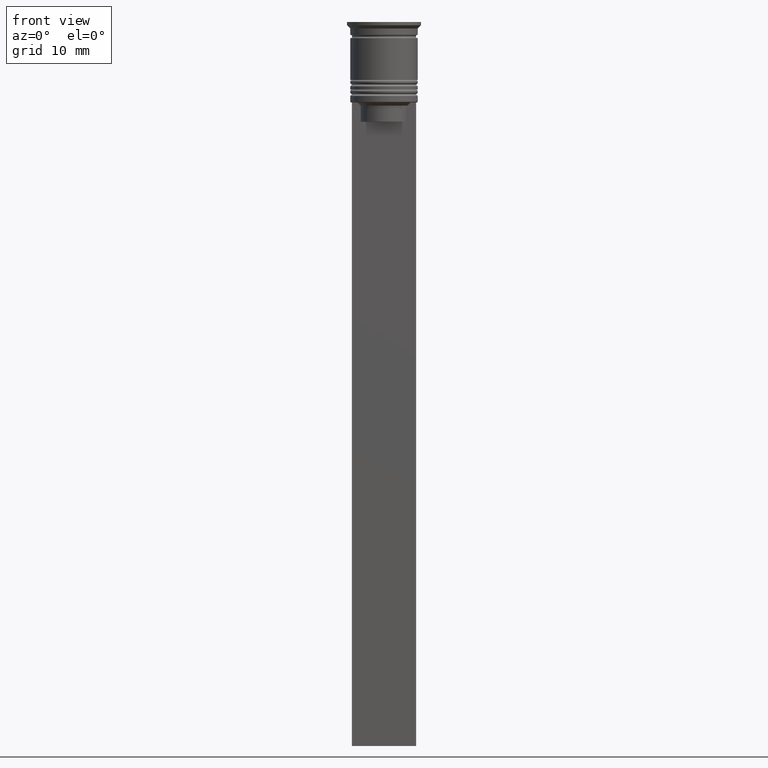
[diagram: clean part render]
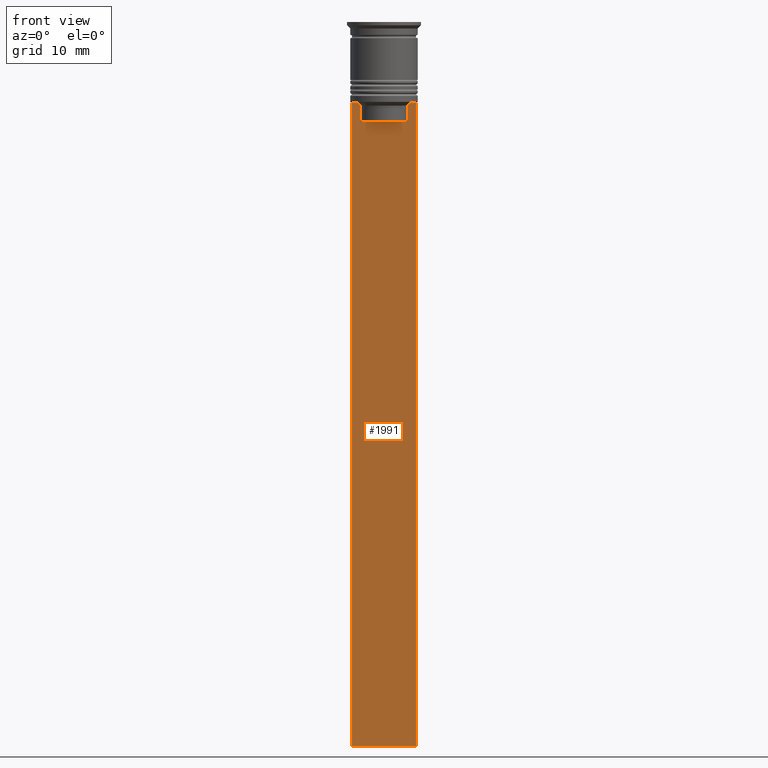
[diagram: same view with one face highlighted and labeled with its STEP entity id]
A machine part, front view. The second image highlights one B-rep face of the part: STEP entity #1991.
In plain terms, the highlighted planar face has unit normal (0, -1, -0).
Its self-contained STEP definition (entity closure, byte-faithful):
#10 = LINE ( 'NONE', #1261, #487 ) ;
#13 = ORIENTED_EDGE ( 'NONE', *, *, #1075, .F. ) ;
#34 = LINE ( 'NONE', #748, #1238 ) ;
#71 = CARTESIAN_POINT ( 'NONE',  ( 5.000000000000000000, -0.5000000000000008882, -112.5000000000000000 ) ) ;
#77 = EDGE_CURVE ( 'NONE', #2206, #1515, #1177, .T. ) ;
#98 = CARTESIAN_POINT ( 'NONE',  ( -4.119769411022908834, -0.5000000000000008882, -12.50000000000000000 ) ) ;
#111 = CARTESIAN_POINT ( 'NONE',  ( 5.000000000000000000, -0.5000000000000008882, -2.450124378879110054 ) ) ;
#159 = CARTESIAN_POINT ( 'NONE',  ( 5.000000000000000000, -0.5000000000000008882, -112.5000000000000000 ) ) ;
#188 = ORIENTED_EDGE ( 'NONE', *, *, #1441, .T. ) ;
#207 = EDGE_CURVE ( 'NONE', #303, #444, #1081, .T. ) ;
#237 = DIRECTION ( 'NONE',  ( 0.000000000000000000, -1.000000000000000000, -0.000000000000000000 ) ) ;
#245 = LINE ( 'NONE', #111, #495 ) ;
#266 = ORIENTED_EDGE ( 'NONE', *, *, #1906, .F. ) ;
#270 = CARTESIAN_POINT ( 'NONE',  ( -3.615591237958188042, -0.5000000000000008882, -13.00000000000000178 ) ) ;
#290 = B_SPLINE_CURVE_WITH_KNOTS ( 'NONE', 3,
 ( #1588, #2314, #2070, #270 ),
 .UNSPECIFIED., .F., .F.,
 ( 4, 4 ),
 ( 0.007067514914986629433, 0.007777582239375527978 ),
 .UNSPECIFIED. ) ;
#303 = VERTEX_POINT ( 'NONE', #1337 ) ;
#308 = LINE ( 'NONE', #831, #1728 ) ;
#346 = VERTEX_POINT ( 'NONE', #594 ) ;
#444 = VERTEX_POINT ( 'NONE', #1194 ) ;
#487 = VECTOR ( 'NONE', #1405, 1000.000000000000000 ) ;
#495 = VECTOR ( 'NONE', #616, 1000.000000000000000 ) ;
#506 = ORIENTED_EDGE ( 'NONE', *, *, #77, .F. ) ;
#594 = CARTESIAN_POINT ( 'NONE',  ( -4.999999999999999112, -0.5000000000000008882, -112.5000000000000000 ) ) ;
#616 = DIRECTION ( 'NONE',  ( 0.000000000000000000, 0.000000000000000000, -1.000000000000000000 ) ) ;
#663 = CARTESIAN_POINT ( 'NONE',  ( 3.615591237958188042, -0.5000000000000008882, 0.000000000000000000 ) ) ;
#681 = EDGE_CURVE ( 'NONE', #1648, #346, #1707, .T. ) ;
#701 = VECTOR ( 'NONE', #1905, 1000.000000000000000 ) ;
#748 = CARTESIAN_POINT ( 'NONE',  ( -4.999999999999999112, -0.5000000000000008882, -2.450124378879110054 ) ) ;
#762 = VERTEX_POINT ( 'NONE', #2108 ) ;
#777 = DIRECTION ( 'NONE',  ( 1.000000000000000000, 0.000000000000000000, 0.000000000000000000 ) ) ;
#809 = CARTESIAN_POINT ( 'NONE',  ( 5.000000000000000000, -0.5000000000000008882, -12.50000000000000000 ) ) ;
#831 = CARTESIAN_POINT ( 'NONE',  ( 0.000000000000000000, -0.5000000000000008882, -15.50000000000000000 ) ) ;
#836 = EDGE_CURVE ( 'NONE', #1515, #2127, #290, .T. ) ;
#957 = CARTESIAN_POINT ( 'NONE',  ( -4.999999999999999112, -0.5000000000000008882, -12.50000000000000000 ) ) ;
#988 = PLANE ( 'NONE',  #1928 ) ;
#1008 = ORIENTED_EDGE ( 'NONE', *, *, #2021, .F. ) ;
#1038 = CARTESIAN_POINT ( 'NONE',  ( 3.615591237958188486, -0.5000000000000008882, -15.50000000000000000 ) ) ;
#1074 = CARTESIAN_POINT ( 'NONE',  ( 5.000000000000000000, -0.5000000000000008882, -12.50000000000000000 ) ) ;
#1075 = EDGE_CURVE ( 'NONE', #1739, #303, #1401, .T. ) ;
#1081 = B_SPLINE_CURVE_WITH_KNOTS ( 'NONE', 3,
 ( #2199, #1295, #2018, #1174 ),
 .UNSPECIFIED., .F., .F.,
 ( 4, 4 ),
 ( 0.01745179617248909451, 0.01816207215777257411 ),
 .UNSPECIFIED. ) ;
#1118 = EDGE_CURVE ( 'NONE', #762, #1739, #308, .T. ) ;
#1141 = CARTESIAN_POINT ( 'NONE',  ( 5.000000000000000000, -0.5000000000000008882, -2.450124378879110054 ) ) ;
#1150 = DIRECTION ( 'NONE',  ( 0.000000000000000000, 0.000000000000000000, -1.000000000000000000 ) ) ;
#1158 = VECTOR ( 'NONE', #1507, 1000.000000000000000 ) ;
#1173 = DIRECTION ( 'NONE',  ( -0.000000000000000000, -0.000000000000000000, 1.000000000000000000 ) ) ;
#1174 = CARTESIAN_POINT ( 'NONE',  ( 4.119769411022908834, -0.5000000000000008882, -12.50000000000000000 ) ) ;
#1177 = LINE ( 'NONE', #1722, #701 ) ;
#1182 = DIRECTION ( 'NONE',  ( 1.000000000000000000, 0.000000000000000000, 0.000000000000000000 ) ) ;
#1194 = CARTESIAN_POINT ( 'NONE',  ( 4.119769411022908834, -0.5000000000000008882, -12.50000000000000000 ) ) ;
#1237 = EDGE_CURVE ( 'NONE', #2127, #762, #10, .T. ) ;
#1238 = VECTOR ( 'NONE', #1480, 1000.000000000000000 ) ;
#1261 = CARTESIAN_POINT ( 'NONE',  ( -3.615591237958188042, -0.5000000000000008882, 0.000000000000000000 ) ) ;
#1295 = CARTESIAN_POINT ( 'NONE',  ( 3.783746406711540278, -0.5000000000000008882, -12.83343003979123509 ) ) ;
#1337 = CARTESIAN_POINT ( 'NONE',  ( 3.615591237958188042, -0.5000000000000008882, -13.00000000000000178 ) ) ;
#1401 = LINE ( 'NONE', #663, #1621 ) ;
#1405 = DIRECTION ( 'NONE',  ( 0.000000000000000000, 0.000000000000000000, -1.000000000000000000 ) ) ;
#1441 = EDGE_CURVE ( 'NONE', #2206, #346, #34, .T. ) ;
#1456 = EDGE_LOOP ( 'NONE', ( #1485, #506, #188, #1951, #1008, #266, #2262, #13, #1568, #2033 ) ) ;
#1480 = DIRECTION ( 'NONE',  ( 0.000000000000000000, 0.000000000000000000, -1.000000000000000000 ) ) ;
#1485 = ORIENTED_EDGE ( 'NONE', *, *, #836, .F. ) ;
#1507 = DIRECTION ( 'NONE',  ( -1.000000000000000000, 0.000000000000000000, 0.000000000000000000 ) ) ;
#1515 = VERTEX_POINT ( 'NONE', #98 ) ;
#1557 = LINE ( 'NONE', #809, #2039 ) ;
#1568 = ORIENTED_EDGE ( 'NONE', *, *, #1118, .F. ) ;
#1588 = CARTESIAN_POINT ( 'NONE',  ( -4.119769411022908834, -0.5000000000000008882, -12.50000000000000000 ) ) ;
#1615 = CARTESIAN_POINT ( 'NONE',  ( -3.615591237958188042, -0.5000000000000008882, -13.00000000000000178 ) ) ;
#1621 = VECTOR ( 'NONE', #1173, 1000.000000000000000 ) ;
#1648 = VERTEX_POINT ( 'NONE', #159 ) ;
#1707 = LINE ( 'NONE', #71, #1158 ) ;
#1722 = CARTESIAN_POINT ( 'NONE',  ( 5.000000000000000000, -0.5000000000000008882, -12.50000000000000000 ) ) ;
#1728 = VECTOR ( 'NONE', #1182, 1000.000000000000000 ) ;
#1739 = VERTEX_POINT ( 'NONE', #1038 ) ;
#1903 = FACE_OUTER_BOUND ( 'NONE', #1456, .T. ) ;
#1905 = DIRECTION ( 'NONE',  ( 1.000000000000000000, 0.000000000000000000, 0.000000000000000000 ) ) ;
#1906 = EDGE_CURVE ( 'NONE', #444, #2214, #1557, .T. ) ;
#1928 = AXIS2_PLACEMENT_3D ( 'NONE', #1141, #237, #1150 ) ;
#1951 = ORIENTED_EDGE ( 'NONE', *, *, #681, .F. ) ;
#1991 = ADVANCED_FACE ( 'NONE', ( #1903 ), #988, .T. ) ;
#2018 = CARTESIAN_POINT ( 'NONE',  ( 3.951794168112528816, -0.5000000000000008882, -12.66675163073525745 ) ) ;
#2021 = EDGE_CURVE ( 'NONE', #2214, #1648, #245, .T. ) ;
#2033 = ORIENTED_EDGE ( 'NONE', *, *, #1237, .F. ) ;
#2039 = VECTOR ( 'NONE', #777, 1000.000000000000000 ) ;
#2070 = CARTESIAN_POINT ( 'NONE',  ( -3.783746449387932476, -0.5000000000000008882, -12.83342999751715752 ) ) ;
#2108 = CARTESIAN_POINT ( 'NONE',  ( -3.615591237958188486, -0.5000000000000008882, -15.50000000000000000 ) ) ;
#2127 = VERTEX_POINT ( 'NONE', #1615 ) ;
#2199 = CARTESIAN_POINT ( 'NONE',  ( 3.615591237958188042, -0.5000000000000008882, -13.00000000000000178 ) ) ;
#2206 = VERTEX_POINT ( 'NONE', #957 ) ;
#2214 = VERTEX_POINT ( 'NONE', #1074 ) ;
#2262 = ORIENTED_EDGE ( 'NONE', *, *, #207, .F. ) ;
#2314 = CARTESIAN_POINT ( 'NONE',  ( -3.951794205566887985, -0.5000000000000008882, -12.66675159355373914 ) ) ;